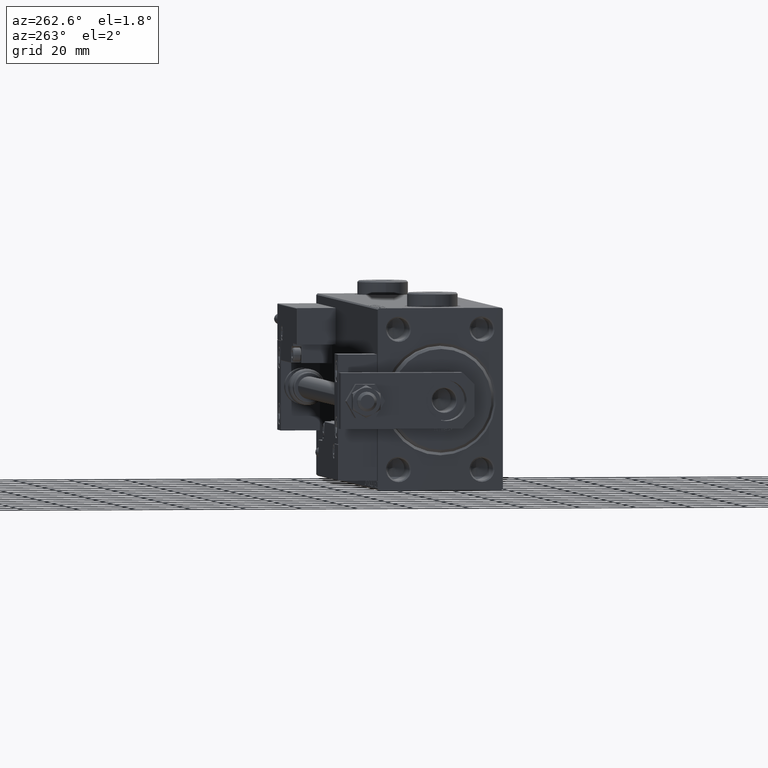
[diagram: clean part render]
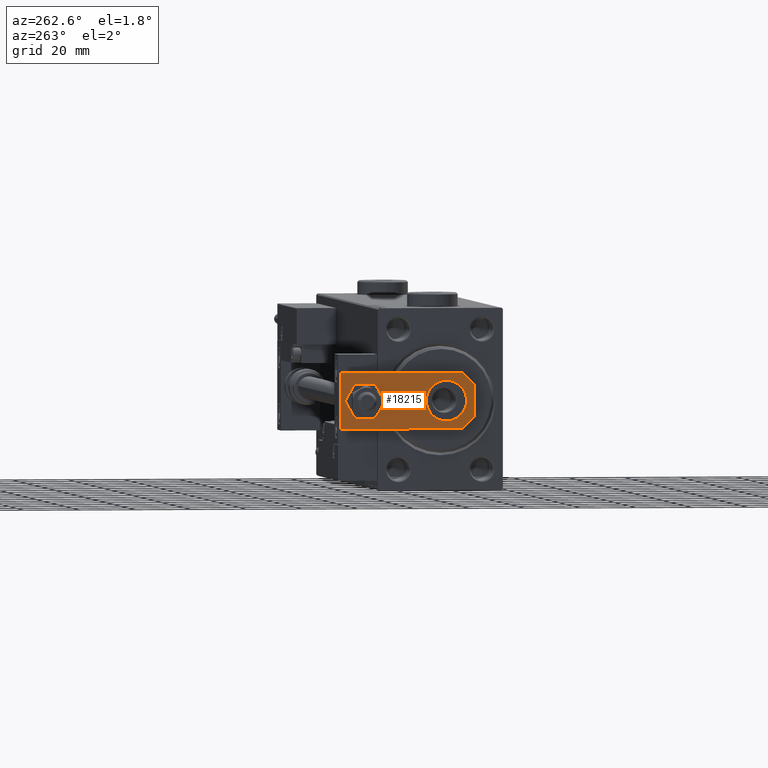
[diagram: same view with one face highlighted and labeled with its STEP entity id]
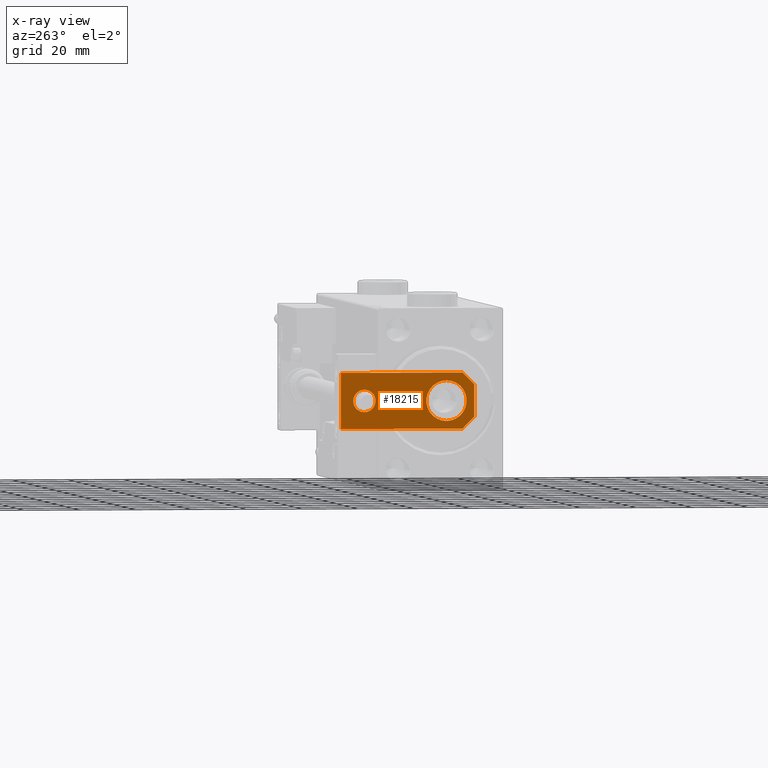
[diagram: x-ray of the same camera — body ghosted, the highlighted face saturated]
A machine part, auxiliary view. The second image highlights one B-rep face of the part: STEP entity #18215.
The next image is the same camera in x-ray: the body ghosted, the highlighted face saturated — about 0% of this face is hidden behind the body in this view.
In plain terms, the highlighted planar face has unit normal (-1, -0, 0).
Its self-contained STEP definition (entity closure, byte-faithful):
#986 = ORIENTED_EDGE ( 'NONE', *, *, #42181, .T. ) ;
#1669 = DIRECTION ( 'NONE',  ( 0.000000000000000000, 0.000000000000000000, 1.000000000000000000 ) ) ;
#1950 = AXIS2_PLACEMENT_3D ( 'NONE', #45083, #25406, #30709 ) ;
#2779 = CIRCLE ( 'NONE', #1950, 7.250000000000000000 ) ;
#2796 = DIRECTION ( 'NONE',  ( 0.000000000000000000, 0.000000000000000000, 1.000000000000000000 ) ) ;
#3320 = FACE_BOUND ( 'NONE', #47074, .T. ) ;
#3533 = ORIENTED_EDGE ( 'NONE', *, *, #45696, .F. ) ;
#4060 = EDGE_CURVE ( 'NONE', #26309, #40798, #2779, .T. ) ;
#4460 = LINE ( 'NONE', #20961, #8464 ) ;
#5248 = DIRECTION ( 'NONE',  ( -7.228014483236695816E-17, 1.000000000000000000, 0.000000000000000000 ) ) ;
#5575 = CARTESIAN_POINT ( 'NONE',  ( -10.00000000000000533, 4.240000000000021529, 6.000000000000000000 ) ) ;
#5730 = AXIS2_PLACEMENT_3D ( 'NONE', #19295, #31514, #47732 ) ;
#5833 = VERTEX_POINT ( 'NONE', #5997 ) ;
#5997 = CARTESIAN_POINT ( 'NONE',  ( 10.00000000000000533, 4.239999999999986890, 6.000000000000000000 ) ) ;
#6870 = EDGE_LOOP ( 'NONE', ( #28199, #3533 ) ) ;
#8078 = LINE ( 'NONE', #16861, #8155 ) ;
#8155 = VECTOR ( 'NONE', #41031, 1000.000000000000000 ) ;
#8464 = VECTOR ( 'NONE', #5248, 1000.000000000000000 ) ;
#10418 = ORIENTED_EDGE ( 'NONE', *, *, #36927, .T. ) ;
#10641 = VECTOR ( 'NONE', #42978, 999.9999999999998863 ) ;
#10958 = DIRECTION ( 'NONE',  ( 0.7071067811865492381, 0.7071067811865457964, -0.000000000000000000 ) ) ;
#11125 = CARTESIAN_POINT ( 'NONE',  ( 4.000000000000000888, 39.50000000000000000, 6.000000000000000000 ) ) ;
#13325 = VECTOR ( 'NONE', #35898, 1000.000000000000000 ) ;
#14024 = EDGE_CURVE ( 'NONE', #23752, #16759, #14096, .T. ) ;
#14096 = CIRCLE ( 'NONE', #15785, 4.000000000000000888 ) ;
#14343 = VERTEX_POINT ( 'NONE', #16002 ) ;
#14458 = ORIENTED_EDGE ( 'NONE', *, *, #29641, .T. ) ;
#15785 = AXIS2_PLACEMENT_3D ( 'NONE', #23804, #2796, #39987 ) ;
#16002 = CARTESIAN_POINT ( 'NONE',  ( 10.00000000000000178, 48.00000000000000000, 6.000000000000000000 ) ) ;
#16202 = AXIS2_PLACEMENT_3D ( 'NONE', #37494, #24242, #43255 ) ;
#16226 = VERTEX_POINT ( 'NONE', #44532 ) ;
#16759 = VERTEX_POINT ( 'NONE', #11125 ) ;
#16861 = CARTESIAN_POINT ( 'NONE',  ( 10.00000000000000178, 48.00000000000000000, 6.000000000000000000 ) ) ;
#17403 = CARTESIAN_POINT ( 'NONE',  ( -10.00000000000000533, 0.000000000000000000, 6.000000000000000000 ) ) ;
#17899 = DIRECTION ( 'NONE',  ( 1.000000000000000000, 0.000000000000000000, 0.000000000000000000 ) ) ;
#18215 = ADVANCED_FACE ( 'NONE', ( #3320, #50726, #19555 ), #38753, .T. ) ;
#19216 = LINE ( 'NONE', #30907, #20642 ) ;
#19295 = CARTESIAN_POINT ( 'NONE',  ( 0.000000000000000000, 0.000000000000000000, 6.000000000000000000 ) ) ;
#19555 = FACE_BOUND ( 'NONE', #6870, .T. ) ;
#19595 = CARTESIAN_POINT ( 'NONE',  ( -2.880000000000006999, -2.879999999999998561, 6.000000000000000000 ) ) ;
#20214 = CARTESIAN_POINT ( 'NONE',  ( -10.00000000000000000, 48.00000000000000000, 6.000000000000000000 ) ) ;
#20482 = LINE ( 'NONE', #20214, #13325 ) ;
#20642 = VECTOR ( 'NONE', #10958, 1000.000000000000114 ) ;
#20961 = CARTESIAN_POINT ( 'NONE',  ( 10.00000000000000533, 0.000000000000000000, 6.000000000000000000 ) ) ;
#21322 = VERTEX_POINT ( 'NONE', #49733 ) ;
#21898 = CARTESIAN_POINT ( 'NONE',  ( -1.432611055310774642E-16, 39.50000000000000000, 6.000000000000000000 ) ) ;
#22206 = LINE ( 'NONE', #17403, #39001 ) ;
#23396 = EDGE_CURVE ( 'NONE', #5833, #14343, #4460, .T. ) ;
#23752 = VERTEX_POINT ( 'NONE', #48815 ) ;
#23804 = CARTESIAN_POINT ( 'NONE',  ( -1.432611055310774642E-16, 39.50000000000000000, 6.000000000000000000 ) ) ;
#24097 = EDGE_CURVE ( 'NONE', #21322, #5833, #19216, .T. ) ;
#24242 = DIRECTION ( 'NONE',  ( 0.000000000000000000, 0.000000000000000000, 1.000000000000000000 ) ) ;
#25149 = AXIS2_PLACEMENT_3D ( 'NONE', #21898, #1669, #17899 ) ;
#25406 = DIRECTION ( 'NONE',  ( 0.000000000000000000, 0.000000000000000000, 1.000000000000000000 ) ) ;
#26189 = DIRECTION ( 'NONE',  ( 1.000000000000000000, 0.000000000000000000, 0.000000000000000000 ) ) ;
#26309 = VERTEX_POINT ( 'NONE', #36943 ) ;
#27053 = ORIENTED_EDGE ( 'NONE', *, *, #31123, .F. ) ;
#28016 = VERTEX_POINT ( 'NONE', #5575 ) ;
#28199 = ORIENTED_EDGE ( 'NONE', *, *, #4060, .F. ) ;
#29641 = EDGE_CURVE ( 'NONE', #28016, #47885, #43240, .T. ) ;
#30709 = DIRECTION ( 'NONE',  ( 1.000000000000000000, 0.000000000000000000, 0.000000000000000000 ) ) ;
#30907 = CARTESIAN_POINT ( 'NONE',  ( 2.879999999999984350, -2.879999999999999005, 6.000000000000000000 ) ) ;
#31123 = EDGE_CURVE ( 'NONE', #16759, #23752, #42121, .T. ) ;
#31514 = DIRECTION ( 'NONE',  ( -0.000000000000000000, 0.000000000000000000, 1.000000000000000000 ) ) ;
#34475 = EDGE_CURVE ( 'NONE', #14343, #16226, #8078, .T. ) ;
#35317 = ORIENTED_EDGE ( 'NONE', *, *, #14024, .F. ) ;
#35898 = DIRECTION ( 'NONE',  ( -1.084202172485504434E-16, -1.000000000000000000, 0.000000000000000000 ) ) ;
#36927 = EDGE_CURVE ( 'NONE', #16226, #28016, #20482, .T. ) ;
#36943 = CARTESIAN_POINT ( 'NONE',  ( -7.250000000000000000, 10.00000000000000178, 6.000000000000000000 ) ) ;
#37494 = CARTESIAN_POINT ( 'NONE',  ( -9.629649721936179265E-32, 10.00000000000000178, 6.000000000000000000 ) ) ;
#38753 = PLANE ( 'NONE',  #5730 ) ;
#39001 = VECTOR ( 'NONE', #26189, 1000.000000000000000 ) ;
#39018 = CARTESIAN_POINT ( 'NONE',  ( 7.250000000000000000, 10.00000000000000355, 6.000000000000000000 ) ) ;
#39987 = DIRECTION ( 'NONE',  ( 1.000000000000000000, 0.000000000000000000, 0.000000000000000000 ) ) ;
#40798 = VERTEX_POINT ( 'NONE', #39018 ) ;
#41031 = DIRECTION ( 'NONE',  ( -1.000000000000000000, 0.000000000000000000, 0.000000000000000000 ) ) ;
#42121 = CIRCLE ( 'NONE', #25149, 4.000000000000000888 ) ;
#42181 = EDGE_CURVE ( 'NONE', #47885, #21322, #22206, .T. ) ;
#42509 = ORIENTED_EDGE ( 'NONE', *, *, #23396, .T. ) ;
#42978 = DIRECTION ( 'NONE',  ( 0.7071067811865464625, -0.7071067811865486830, 0.000000000000000000 ) ) ;
#43006 = ORIENTED_EDGE ( 'NONE', *, *, #34475, .T. ) ;
#43240 = LINE ( 'NONE', #19595, #10641 ) ;
#43255 = DIRECTION ( 'NONE',  ( 1.000000000000000000, 0.000000000000000000, 0.000000000000000000 ) ) ;
#43426 = EDGE_LOOP ( 'NONE', ( #10418, #14458, #986, #45453, #42509, #43006 ) ) ;
#44532 = CARTESIAN_POINT ( 'NONE',  ( -10.00000000000000000, 48.00000000000000000, 6.000000000000000000 ) ) ;
#45083 = CARTESIAN_POINT ( 'NONE',  ( -9.629649721936179265E-32, 10.00000000000000178, 6.000000000000000000 ) ) ;
#45453 = ORIENTED_EDGE ( 'NONE', *, *, #24097, .T. ) ;
#45696 = EDGE_CURVE ( 'NONE', #40798, #26309, #50042, .T. ) ;
#47074 = EDGE_LOOP ( 'NONE', ( #35317, #27053 ) ) ;
#47732 = DIRECTION ( 'NONE',  ( 1.000000000000000000, 0.000000000000000000, 0.000000000000000000 ) ) ;
#47885 = VERTEX_POINT ( 'NONE', #51776 ) ;
#48815 = CARTESIAN_POINT ( 'NONE',  ( -4.000000000000000888, 39.50000000000000000, 6.000000000000000000 ) ) ;
#49733 = CARTESIAN_POINT ( 'NONE',  ( 5.759999999999998010, 0.000000000000000000, 6.000000000000000000 ) ) ;
#50042 = CIRCLE ( 'NONE', #16202, 7.250000000000000000 ) ;
#50726 = FACE_OUTER_BOUND ( 'NONE', #43426, .T. ) ;
#51776 = CARTESIAN_POINT ( 'NONE',  ( -5.759999999999997122, 0.000000000000000000, 6.000000000000000000 ) ) ;